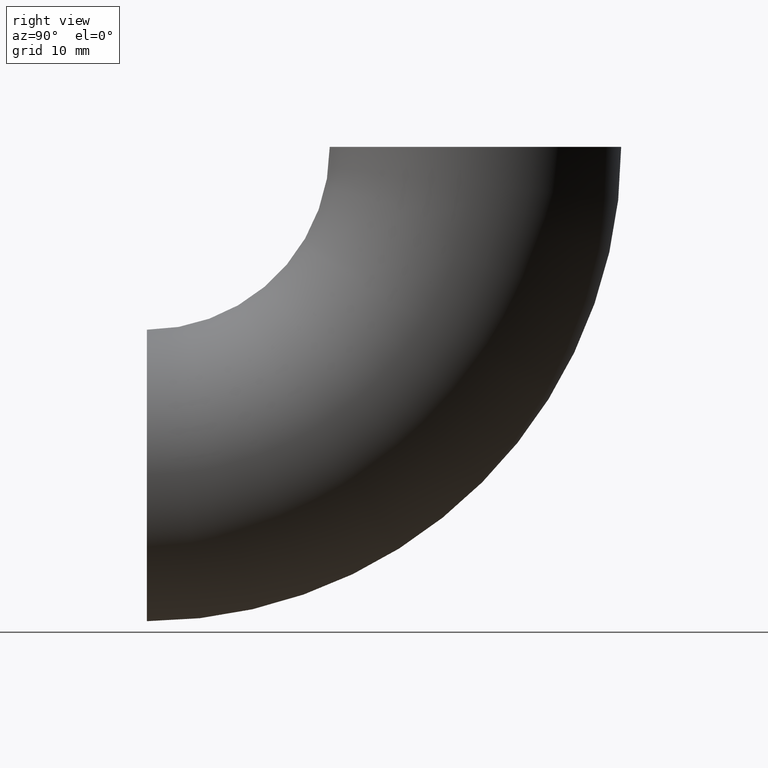
[diagram: clean part render]
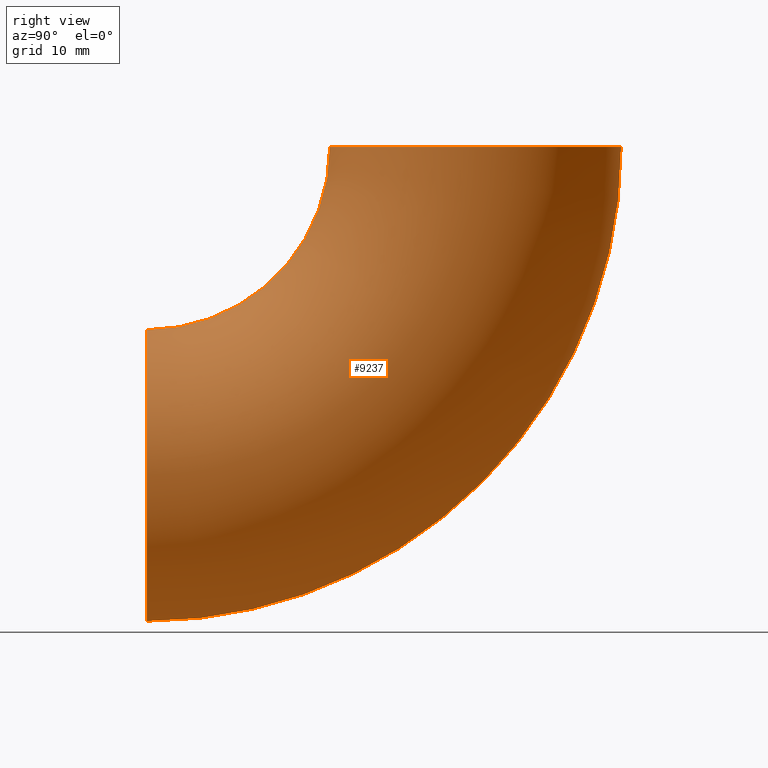
[diagram: same view with one face highlighted and labeled with its STEP entity id]
A machine part, right view. The second image highlights one B-rep face of the part: STEP entity #9237.
In plain terms, the highlighted toroidal blend (fillet) surface has major radius 38 mm and minor (blend) radius 16.85 mm.
Its self-contained STEP definition (entity closure, byte-faithful):
#255 = EDGE_CURVE ( 'NONE', #10713, #1440, #11057, .T. ) ;
#322 = EDGE_CURVE ( 'NONE', #1440, #1606, #9752, .T. ) ;
#362 = DIRECTION ( 'NONE',  ( -1.000000000000000000, -0.0000000000000000000, -0.0000000000000000000 ) ) ;
#758 = CARTESIAN_POINT ( 'NONE',  ( 0.0000000000000000000, 21.14999999999999900, -1.295063990098325800E-015 ) ) ;
#764 = DIRECTION ( 'NONE',  ( 0.0000000000000000000, 0.0000000000000000000, 1.000000000000000000 ) ) ;
#962 = CARTESIAN_POINT ( 'NONE',  ( 0.0000000000000000000, 0.0000000000000000000, -54.84999999999999400 ) ) ;
#1064 = AXIS2_PLACEMENT_3D ( 'NONE', #2354, #8813, #11608 ) ;
#1092 = DIRECTION ( 'NONE',  ( 0.0000000000000000000, 6.123233995736766000E-017, 1.000000000000000000 ) ) ;
#1440 = VERTEX_POINT ( 'NONE', #4458 ) ;
#1606 = VERTEX_POINT ( 'NONE', #962 ) ;
#2124 = AXIS2_PLACEMENT_3D ( 'NONE', #6728, #11369, #4058 ) ;
#2354 = CARTESIAN_POINT ( 'NONE',  ( 0.0000000000000000000, 0.0000000000000000000, -38.00000000000000000 ) ) ;
#2929 = ORIENTED_EDGE ( 'NONE', *, *, #255, .T. ) ;
#2932 = DIRECTION ( 'NONE',  ( 0.0000000000000000000, -1.000000000000000000, 6.123233995736766000E-017 ) ) ;
#3303 = ORIENTED_EDGE ( 'NONE', *, *, #322, .T. ) ;
#3494 = FACE_OUTER_BOUND ( 'NONE', #11455, .T. ) ;
#3547 = AXIS2_PLACEMENT_3D ( 'NONE', #6292, #7168, #764 ) ;
#3873 = CARTESIAN_POINT ( 'NONE',  ( 0.0000000000000000000, 38.00000000000000000, -2.326828918379971000E-015 ) ) ;
#4058 = DIRECTION ( 'NONE',  ( 0.0000000000000000000, 0.0000000000000000000, 1.000000000000000000 ) ) ;
#4127 = CARTESIAN_POINT ( 'NONE',  ( 0.0000000000000000000, 54.84999999999999400, -3.358593846661615700E-015 ) ) ;
#4387 = ORIENTED_EDGE ( 'NONE', *, *, #6515, .F. ) ;
#4445 = EDGE_CURVE ( 'NONE', #10713, #8663, #7691, .T. ) ;
#4458 = CARTESIAN_POINT ( 'NONE',  ( 0.0000000000000000000, 0.0000000000000000000, -21.14999999999999900 ) ) ;
#5117 = CARTESIAN_POINT ( 'NONE',  ( 0.0000000000000000000, 0.0000000000000000000, 0.0000000000000000000 ) ) ;
#6292 = CARTESIAN_POINT ( 'NONE',  ( 0.0000000000000000000, 0.0000000000000000000, 0.0000000000000000000 ) ) ;
#6515 = EDGE_CURVE ( 'NONE', #8663, #1606, #8103, .T. ) ;
#6728 = CARTESIAN_POINT ( 'NONE',  ( 2.063529856563290200E-015, 0.0000000000000000000, 0.0000000000000000000 ) ) ;
#7168 = DIRECTION ( 'NONE',  ( -1.000000000000000000, -0.0000000000000000000, -0.0000000000000000000 ) ) ;
#7530 = TOROIDAL_SURFACE ( 'NONE', #9745, 38.00000000000000000, 16.85000000000000100 ) ;
#7691 = CIRCLE ( 'NONE', #8400, 16.85000000000000100 ) ;
#8103 = CIRCLE ( 'NONE', #3547, 54.84999999999999400 ) ;
#8400 = AXIS2_PLACEMENT_3D ( 'NONE', #3873, #1092, #2932 ) ;
#8663 = VERTEX_POINT ( 'NONE', #4127 ) ;
#8813 = DIRECTION ( 'NONE',  ( 0.0000000000000000000, 1.000000000000000000, 0.0000000000000000000 ) ) ;
#9237 = ADVANCED_FACE ( 'NONE', ( #3494 ), #7530, .T. ) ;
#9721 = DIRECTION ( 'NONE',  ( 0.0000000000000000000, 0.0000000000000000000, 1.000000000000000000 ) ) ;
#9745 = AXIS2_PLACEMENT_3D ( 'NONE', #5117, #362, #9721 ) ;
#9752 = CIRCLE ( 'NONE', #1064, 16.85000000000000100 ) ;
#10713 = VERTEX_POINT ( 'NONE', #758 ) ;
#11057 = CIRCLE ( 'NONE', #2124, 21.14999999999999900 ) ;
#11369 = DIRECTION ( 'NONE',  ( -1.000000000000000000, -0.0000000000000000000, -0.0000000000000000000 ) ) ;
#11455 = EDGE_LOOP ( 'NONE', ( #4387, #11602, #2929, #3303 ) ) ;
#11602 = ORIENTED_EDGE ( 'NONE', *, *, #4445, .F. ) ;
#11608 = DIRECTION ( 'NONE',  ( 0.0000000000000000000, 0.0000000000000000000, 1.000000000000000000 ) ) ;